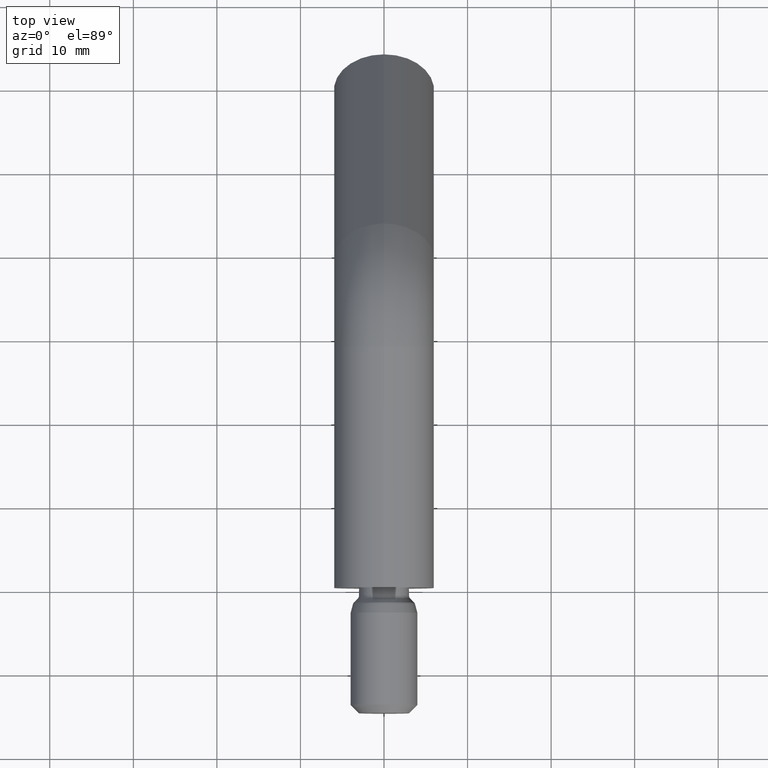
[diagram: clean part render]
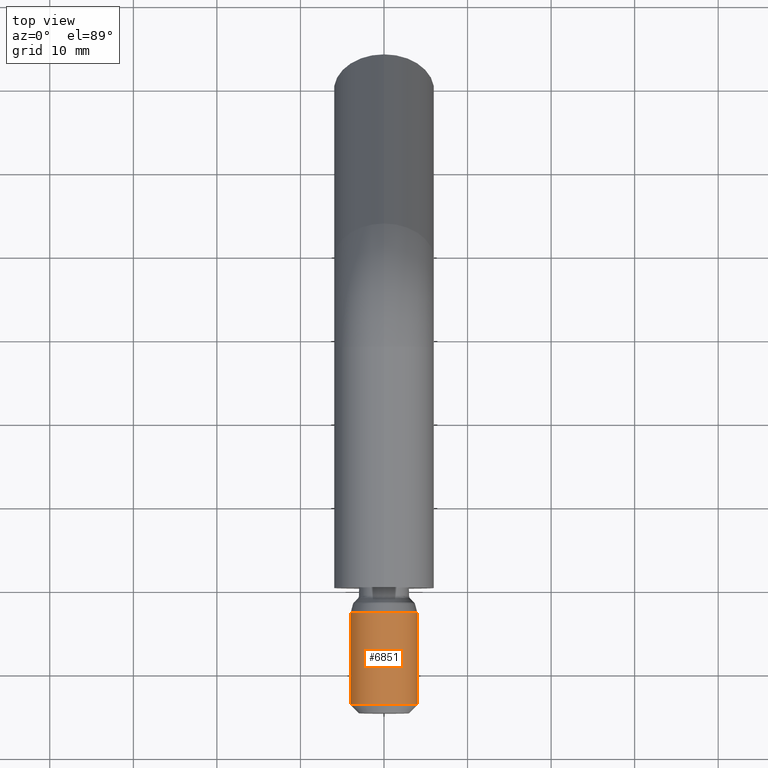
[diagram: same view with one face highlighted and labeled with its STEP entity id]
A machine part, top view. The second image highlights one B-rep face of the part: STEP entity #6851.
In plain terms, the highlighted cylindrical surface (edge-blend (fillet) strip) has radius 4 mm, axis along (-0, 1, -0).
Its self-contained STEP definition (entity closure, byte-faithful):
#126 = CARTESIAN_POINT ( 'NONE',  ( -4.000000000000000900, -4.625929269271487900E-016, 0.0000000000000000000 ) ) ;
#520 = CYLINDRICAL_SURFACE ( 'NONE', #13440, 4.000000000000000900 ) ;
#569 = VERTEX_POINT ( 'NONE', #5945 ) ;
#837 = VERTEX_POINT ( 'NONE', #13269 ) ;
#892 = DIRECTION ( 'NONE',  ( -1.000000000000000000, -1.156482317317871700E-016, 0.0000000000000000000 ) ) ;
#941 = CARTESIAN_POINT ( 'NONE',  ( 0.0000000000000000000, 0.0000000000000000000, 0.0000000000000000000 ) ) ;
#1304 = ORIENTED_EDGE ( 'NONE', *, *, #11909, .T. ) ;
#1367 = DIRECTION ( 'NONE',  ( -1.156482317317871500E-016, 1.000000000000000000, -0.0000000000000000000 ) ) ;
#1397 = VERTEX_POINT ( 'NONE', #8485 ) ;
#1443 = EDGE_CURVE ( 'NONE', #569, #837, #10636, .T. ) ;
#1981 = DIRECTION ( 'NONE',  ( -1.156482317317871500E-016, 1.000000000000000000, -0.0000000000000000000 ) ) ;
#2574 = FACE_OUTER_BOUND ( 'NONE', #8766, .T. ) ;
#3640 = DIRECTION ( 'NONE',  ( -1.156482317317871700E-016, 1.000000000000000000, -0.0000000000000000000 ) ) ;
#4307 = DIRECTION ( 'NONE',  ( -1.156482317317871500E-016, 1.000000000000000000, -0.0000000000000000000 ) ) ;
#4740 = EDGE_CURVE ( 'NONE', #14231, #1397, #8515, .T. ) ;
#4850 = ORIENTED_EDGE ( 'NONE', *, *, #8716, .F. ) ;
#5866 = DIRECTION ( 'NONE',  ( -1.156482317317871500E-016, 1.000000000000000000, -0.0000000000000000000 ) ) ;
#5945 = CARTESIAN_POINT ( 'NONE',  ( -4.000000000000001800, -3.000000000000000000, 0.0000000000000000000 ) ) ;
#6851 = ADVANCED_FACE ( 'NONE', ( #2574 ), #520, .T. ) ;
#8485 = CARTESIAN_POINT ( 'NONE',  ( 4.000000000000002700, -13.99999999999999300, 4.898587196589414800E-016 ) ) ;
#8515 = CIRCLE ( 'NONE', #14056, 4.000000000000000900 ) ;
#8716 = EDGE_CURVE ( 'NONE', #14231, #569, #14104, .T. ) ;
#8766 = EDGE_LOOP ( 'NONE', ( #10705, #1304, #9475, #4850 ) ) ;
#9475 = ORIENTED_EDGE ( 'NONE', *, *, #1443, .F. ) ;
#9789 = CARTESIAN_POINT ( 'NONE',  ( 3.469446951953613700E-016, -2.999999999999999600, 0.0000000000000000000 ) ) ;
#10264 = CARTESIAN_POINT ( 'NONE',  ( 1.619075244245019200E-015, -13.99999999999999300, 0.0000000000000000000 ) ) ;
#10341 = VECTOR ( 'NONE', #1367, 1000.000000000000000 ) ;
#10596 = VECTOR ( 'NONE', #5866, 1000.000000000000000 ) ;
#10630 = CARTESIAN_POINT ( 'NONE',  ( -3.999999999999999100, -13.99999999999999300, 0.0000000000000000000 ) ) ;
#10636 = CIRCLE ( 'NONE', #12497, 4.000000000000001800 ) ;
#10705 = ORIENTED_EDGE ( 'NONE', *, *, #4740, .T. ) ;
#10877 = DIRECTION ( 'NONE',  ( -1.000000000000000000, -1.084202172485503900E-016, 0.0000000000000000000 ) ) ;
#11333 = DIRECTION ( 'NONE',  ( -1.000000000000000000, 0.0000000000000000000, 0.0000000000000000000 ) ) ;
#11649 = CARTESIAN_POINT ( 'NONE',  ( 4.000000000000000900, 4.625929269271487900E-016, 4.898587196589413800E-016 ) ) ;
#11909 = EDGE_CURVE ( 'NONE', #1397, #837, #13007, .T. ) ;
#12497 = AXIS2_PLACEMENT_3D ( 'NONE', #9789, #4307, #10877 ) ;
#13007 = LINE ( 'NONE', #11649, #10596 ) ;
#13269 = CARTESIAN_POINT ( 'NONE',  ( 4.000000000000001800, -2.999999999999999100, 4.898587196589413800E-016 ) ) ;
#13440 = AXIS2_PLACEMENT_3D ( 'NONE', #941, #1981, #892 ) ;
#14056 = AXIS2_PLACEMENT_3D ( 'NONE', #10264, #3640, #11333 ) ;
#14104 = LINE ( 'NONE', #126, #10341 ) ;
#14231 = VERTEX_POINT ( 'NONE', #10630 ) ;